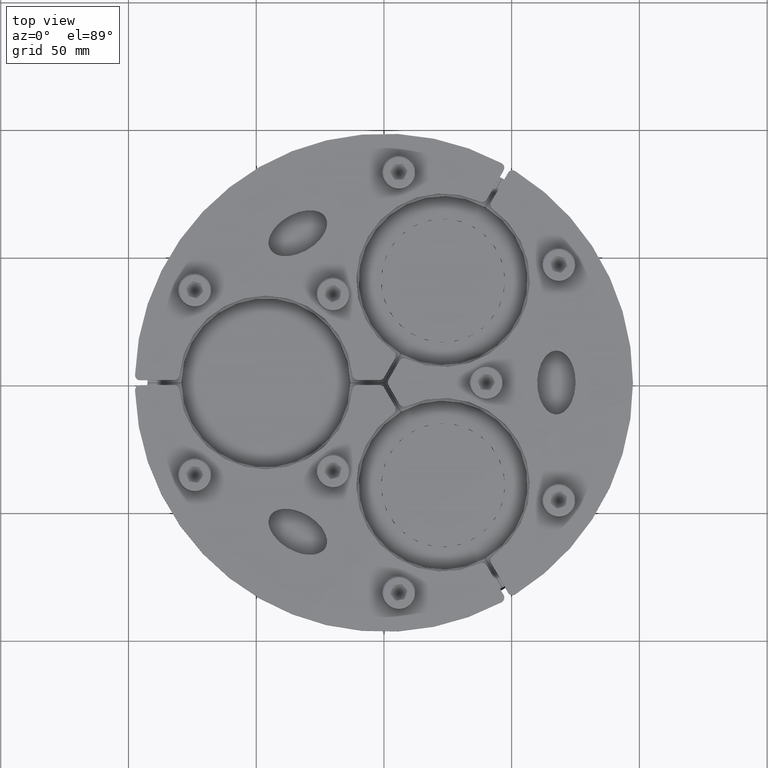
[diagram: clean part render]
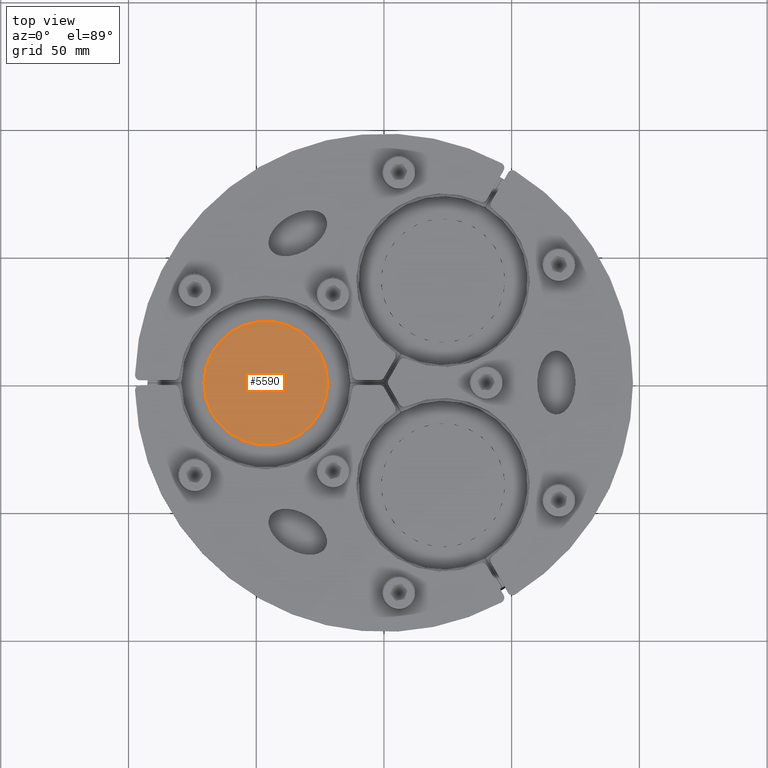
[diagram: same view with one face highlighted and labeled with its STEP entity id]
A machine part, top view. The second image highlights one B-rep face of the part: STEP entity #5590.
In plain terms, the highlighted planar face has unit normal (0, 0, 1).
Its self-contained STEP definition (entity closure, byte-faithful):
#5570=CARTESIAN_POINT('',(24.199999999999999,2.963645E-015,30.0));
#5571=VERTEX_POINT('',#5570);
#5572=CARTESIAN_POINT('',(0.0,0.0,30.0));
#5573=DIRECTION('',(0.0,0.0,1.0));
#5574=DIRECTION('',(-1.0,0.0,0.0));
#5575=AXIS2_PLACEMENT_3D('',#5572,#5573,#5574);
#5576=CIRCLE('',#5575,24.199999999999999);
#5577=EDGE_CURVE('',#5571,#5571,#5576,.T.);
#5582=CARTESIAN_POINT('',(-1.470357E-015,-6.116931E-016,30.0));
#5583=DIRECTION('',(0.0,0.0,1.0));
#5584=DIRECTION('',(1.0,0.0,0.0));
#5585=AXIS2_PLACEMENT_3D('',#5582,#5583,#5584);
#5586=PLANE('',#5585);
#5587=ORIENTED_EDGE('',*,*,#5577,.T.);
#5588=EDGE_LOOP('',(#5587));
#5589=FACE_OUTER_BOUND('',#5588,.T.);
#5590=ADVANCED_FACE('',(#5589),#5586,.T.);